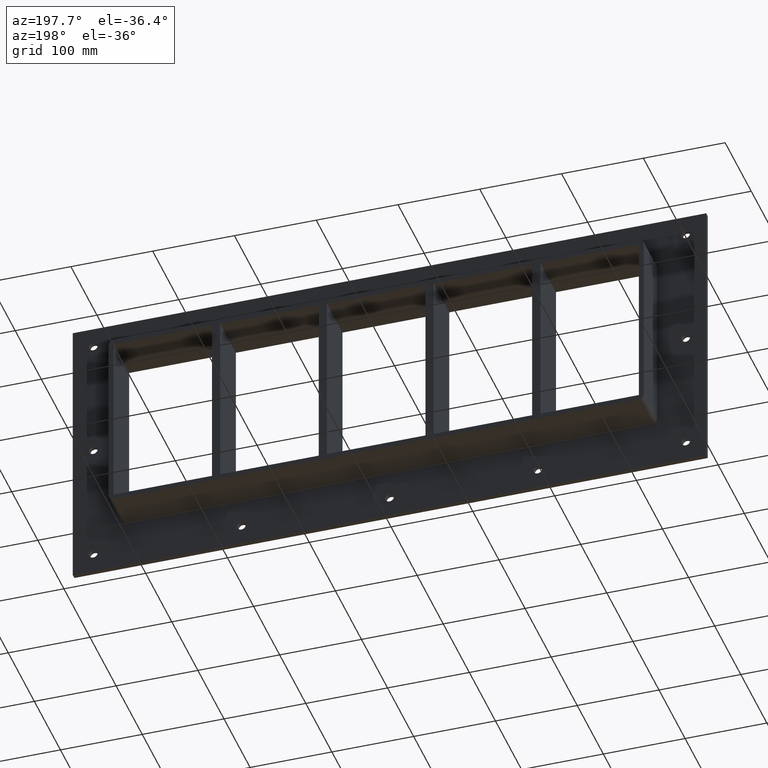
[diagram: clean part render]
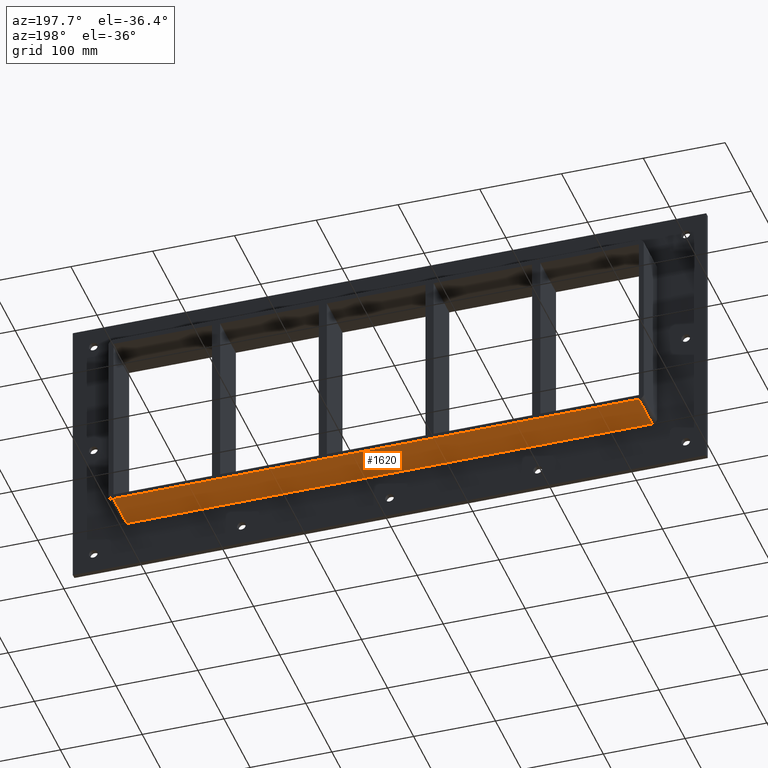
[diagram: same view with one face highlighted and labeled with its STEP entity id]
A machine part, auxiliary view. The second image highlights one B-rep face of the part: STEP entity #1620.
In plain terms, the highlighted planar face has unit normal (0, 0, -1).
Its self-contained STEP definition (entity closure, byte-faithful):
#1055=CARTESIAN_POINT('',(-321.25,6.000000000000001,-115.0));
#1056=VERTEX_POINT('',#1055);
#1066=CARTESIAN_POINT('',(321.25,6.000000000000001,-115.0));
#1067=VERTEX_POINT('',#1066);
#1068=CARTESIAN_POINT('',(321.25,6.000000000000001,-115.0));
#1069=DIRECTION('',(-1.0,0.0,0.0));
#1070=VECTOR('',#1069,642.5);
#1071=LINE('',#1068,#1070);
#1072=EDGE_CURVE('',#1067,#1056,#1071,.T.);
#1529=CARTESIAN_POINT('',(321.25,57.0,-115.0));
#1530=VERTEX_POINT('',#1529);
#1531=CARTESIAN_POINT('',(321.25,6.000000000000001,-115.0));
#1532=DIRECTION('',(0.0,1.0,0.0));
#1533=VECTOR('',#1532,51.0);
#1534=LINE('',#1531,#1533);
#1535=EDGE_CURVE('',#1067,#1530,#1534,.T.);
#1597=CARTESIAN_POINT('',(327.24999999999994,0.0,-115.0));
#1598=DIRECTION('',(0.0,0.0,-1.0));
#1599=DIRECTION('',(-1.0,0.0,0.0));
#1600=AXIS2_PLACEMENT_3D('',#1597,#1598,#1599);
#1601=PLANE('',#1600);
#1602=ORIENTED_EDGE('',*,*,#1072,.T.);
#1603=CARTESIAN_POINT('',(-321.25,57.0,-115.0));
#1604=VERTEX_POINT('',#1603);
#1605=CARTESIAN_POINT('',(-321.25,57.0,-115.0));
#1606=DIRECTION('',(0.0,-1.0,0.0));
#1607=VECTOR('',#1606,51.0);
#1608=LINE('',#1605,#1607);
#1609=EDGE_CURVE('',#1604,#1056,#1608,.T.);
#1610=ORIENTED_EDGE('',*,*,#1609,.F.);
#1611=CARTESIAN_POINT('',(321.25,57.0,-115.0));
#1612=DIRECTION('',(-1.0,0.0,0.0));
#1613=VECTOR('',#1612,642.5);
#1614=LINE('',#1611,#1613);
#1615=EDGE_CURVE('',#1530,#1604,#1614,.T.);
#1616=ORIENTED_EDGE('',*,*,#1615,.F.);
#1617=ORIENTED_EDGE('',*,*,#1535,.F.);
#1618=EDGE_LOOP('',(#1602,#1610,#1616,#1617));
#1619=FACE_OUTER_BOUND('',#1618,.T.);
#1620=ADVANCED_FACE('',(#1619),#1601,.T.);